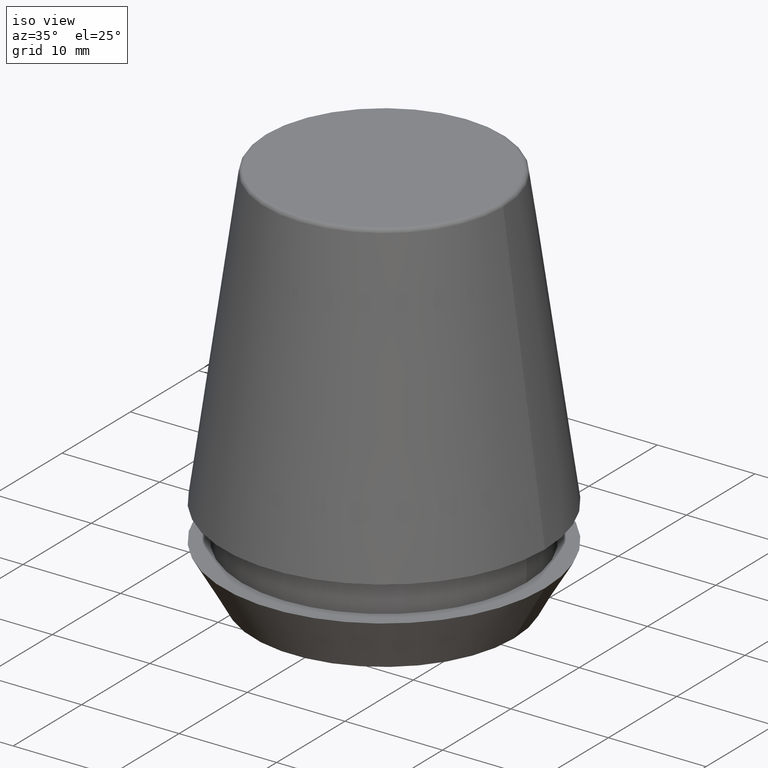
[diagram: clean part render]
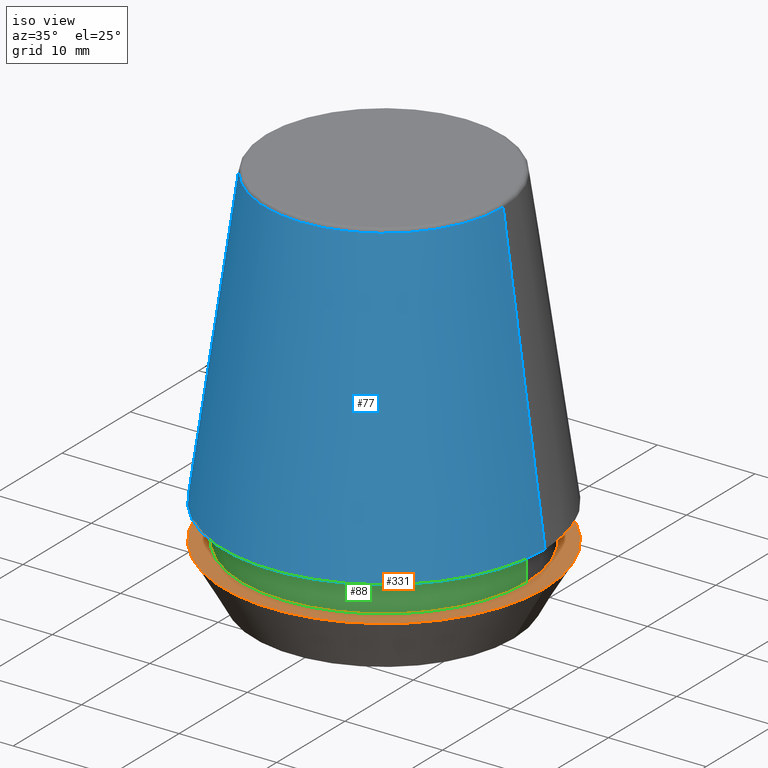
[diagram: same view with three faces highlighted in distinct colors, each labeled with its STEP entity id]
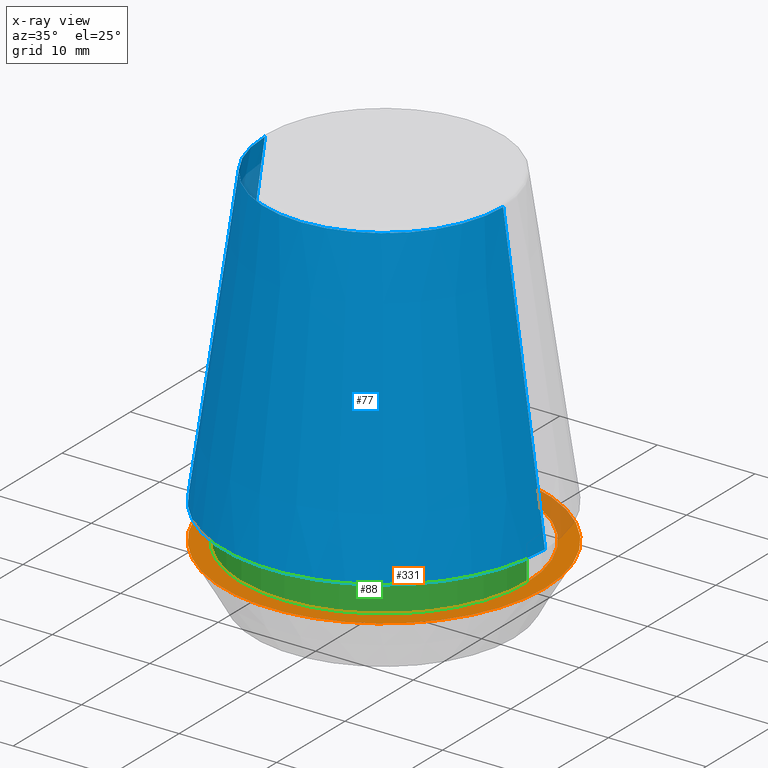
[diagram: x-ray of the same camera — body ghosted, the three highlighted faces saturated]
A machine part, iso view with three faces highlighted in distinct colors.
The next image is the same camera in x-ray (body ghosted, the three faces saturated) — at least one of them is partly hidden behind the body in this view.
Their STEP definitions:

[orange] entity #331 — the highlighted planar face has unit normal (0, 0, -1).
#25 = CARTESIAN_POINT ( 'NONE',  ( 0.0000000000000000000, 0.0000000000000000000, 5.500000000000005300 ) ) ;
#26 = AXIS2_PLACEMENT_3D ( 'NONE', #40, #351, #150 ) ;
#28 = VERTEX_POINT ( 'NONE', #361 ) ;
#38 = AXIS2_PLACEMENT_3D ( 'NONE', #234, #56, #113 ) ;
#40 = CARTESIAN_POINT ( 'NONE',  ( 0.0000000000000000000, 16.50000000000000000, 5.500000000000002700 ) ) ;
#55 = DIRECTION ( 'NONE',  ( -0.0000000000000000000, -0.0000000000000000000, 1.000000000000000000 ) ) ;
#56 = DIRECTION ( 'NONE',  ( -0.0000000000000000000, -0.0000000000000000000, 1.000000000000000000 ) ) ;
#78 = EDGE_CURVE ( 'NONE', #247, #28, #149, .T. ) ;
#84 = PLANE ( 'NONE',  #26 ) ;
#91 = AXIS2_PLACEMENT_3D ( 'NONE', #25, #231, #371 ) ;
#96 = CIRCLE ( 'NONE', #91, 16.50000000000000000 ) ;
#104 = EDGE_LOOP ( 'NONE', ( #281, #119 ) ) ;
#113 = DIRECTION ( 'NONE',  ( 1.000000000000000000, 0.0000000000000000000, 0.0000000000000000000 ) ) ;
#119 = ORIENTED_EDGE ( 'NONE', *, *, #168, .F. ) ;
#126 = FACE_OUTER_BOUND ( 'NONE', #156, .T. ) ;
#130 = CARTESIAN_POINT ( 'NONE',  ( 0.0000000000000000000, 0.0000000000000000000, 5.500000000000005300 ) ) ;
#138 = DIRECTION ( 'NONE',  ( -0.0000000000000000000, -0.0000000000000000000, 1.000000000000000000 ) ) ;
#149 = CIRCLE ( 'NONE', #183, 14.60000000000000000 ) ;
#150 = DIRECTION ( 'NONE',  ( -1.000000000000000000, 0.0000000000000000000, -0.0000000000000000000 ) ) ;
#156 = EDGE_LOOP ( 'NONE', ( #200, #326 ) ) ;
#168 = EDGE_CURVE ( 'NONE', #28, #247, #196, .T. ) ;
#180 = CIRCLE ( 'NONE', #195, 16.50000000000000000 ) ;
#183 = AXIS2_PLACEMENT_3D ( 'NONE', #202, #138, #347 ) ;
#195 = AXIS2_PLACEMENT_3D ( 'NONE', #130, #55, #271 ) ;
#196 = CIRCLE ( 'NONE', #38, 14.60000000000000000 ) ;
#200 = ORIENTED_EDGE ( 'NONE', *, *, #338, .T. ) ;
#202 = CARTESIAN_POINT ( 'NONE',  ( 0.0000000000000000000, 0.0000000000000000000, 5.500000000000005300 ) ) ;
#204 = CARTESIAN_POINT ( 'NONE',  ( 14.60000000000000000, 0.0000000000000000000, 5.500000000000005300 ) ) ;
#227 = FACE_BOUND ( 'NONE', #104, .T. ) ;
#231 = DIRECTION ( 'NONE',  ( -0.0000000000000000000, -0.0000000000000000000, 1.000000000000000000 ) ) ;
#234 = CARTESIAN_POINT ( 'NONE',  ( 0.0000000000000000000, 0.0000000000000000000, 5.500000000000005300 ) ) ;
#247 = VERTEX_POINT ( 'NONE', #204 ) ;
#271 = DIRECTION ( 'NONE',  ( 1.000000000000000000, 0.0000000000000000000, 0.0000000000000000000 ) ) ;
#277 = VERTEX_POINT ( 'NONE', #333 ) ;
#281 = ORIENTED_EDGE ( 'NONE', *, *, #78, .F. ) ;
#326 = ORIENTED_EDGE ( 'NONE', *, *, #332, .T. ) ;
#331 = ADVANCED_FACE ( 'NONE', ( #227, #126 ), #84, .F. ) ;
#332 = EDGE_CURVE ( 'NONE', #387, #277, #96, .T. ) ;
#333 = CARTESIAN_POINT ( 'NONE',  ( 16.50000000000000000, 0.0000000000000000000, 5.500000000000005300 ) ) ;
#338 = EDGE_CURVE ( 'NONE', #277, #387, #180, .T. ) ;
#347 = DIRECTION ( 'NONE',  ( 1.000000000000000000, 0.0000000000000000000, 0.0000000000000000000 ) ) ;
#351 = DIRECTION ( 'NONE',  ( 0.0000000000000000000, 0.0000000000000000000, -1.000000000000000000 ) ) ;
#361 = CARTESIAN_POINT ( 'NONE',  ( -14.60000000000000000, 1.787984326755135800E-015, 5.500000000000005300 ) ) ;
#371 = DIRECTION ( 'NONE',  ( 1.000000000000000000, 0.0000000000000000000, 0.0000000000000000000 ) ) ;
#383 = CARTESIAN_POINT ( 'NONE',  ( -16.50000000000000000, 2.020667218593133100E-015, 5.500000000000005300 ) ) ;
#387 = VERTEX_POINT ( 'NONE', #383 ) ;

[blue] entity #77 — the highlighted conical surface has half-angle 8 deg.
#31 = DIRECTION ( 'NONE',  ( -0.0000000000000000000, -0.0000000000000000000, 1.000000000000000000 ) ) ;
#39 = AXIS2_PLACEMENT_3D ( 'NONE', #179, #31, #127 ) ;
#50 = CARTESIAN_POINT ( 'NONE',  ( -16.50032537154048700, 0.0000000000000000000, 9.099999999999997900 ) ) ;
#77 = ADVANCED_FACE ( 'NONE', ( #252 ), #318, .T. ) ;
#127 = DIRECTION ( 'NONE',  ( 1.000000000000000000, 0.0000000000000000000, 0.0000000000000000000 ) ) ;
#139 = LINE ( 'NONE', #154, #203 ) ;
#140 = CARTESIAN_POINT ( 'NONE',  ( 0.0000000000000000000, 0.0000000000000000000, 39.65566924038402900 ) ) ;
#154 = CARTESIAN_POINT ( 'NONE',  ( 16.50032537154048700, 2.020707065114692300E-015, 9.099999999999997900 ) ) ;
#155 = EDGE_CURVE ( 'NONE', #373, #289, #266, .T. ) ;
#157 = DIRECTION ( 'NONE',  ( -0.1391731009600586900, 0.0000000000000000000, -0.9902680687415712500 ) ) ;
#166 = VERTEX_POINT ( 'NONE', #369 ) ;
#169 = AXIS2_PLACEMENT_3D ( 'NONE', #140, #348, #335 ) ;
#175 = DIRECTION ( 'NONE',  ( 0.0000000000000000000, 0.0000000000000000000, -1.000000000000000000 ) ) ;
#179 = CARTESIAN_POINT ( 'NONE',  ( 0.0000000000000000000, 0.0000000000000000000, 9.099999999999997900 ) ) ;
#203 = VECTOR ( 'NONE', #274, 1000.000000000000000 ) ;
#210 = ORIENTED_EDGE ( 'NONE', *, *, #370, .F. ) ;
#212 = LINE ( 'NONE', #50, #367 ) ;
#224 = AXIS2_PLACEMENT_3D ( 'NONE', #242, #175, #275 ) ;
#230 = CIRCLE ( 'NONE', #39, 16.50032537154048700 ) ;
#242 = CARTESIAN_POINT ( 'NONE',  ( 0.0000000000000000000, 0.0000000000000000000, 9.099999999999997900 ) ) ;
#252 = FACE_OUTER_BOUND ( 'NONE', #300, .T. ) ;
#254 = CARTESIAN_POINT ( 'NONE',  ( -12.20600611160694300, 0.0000000000000000000, 39.65566924038402900 ) ) ;
#266 = CIRCLE ( 'NONE', #169, 12.20600611160694300 ) ;
#274 = DIRECTION ( 'NONE',  ( 0.1391731009600586900, 1.704378926181473100E-017, -0.9902680687415712500 ) ) ;
#275 = DIRECTION ( 'NONE',  ( -1.000000000000000000, 0.0000000000000000000, 0.0000000000000000000 ) ) ;
#280 = EDGE_CURVE ( 'NONE', #373, #166, #212, .T. ) ;
#289 = VERTEX_POINT ( 'NONE', #315 ) ;
#300 = EDGE_LOOP ( 'NONE', ( #210, #307, #319, #323 ) ) ;
#307 = ORIENTED_EDGE ( 'NONE', *, *, #155, .F. ) ;
#309 = EDGE_CURVE ( 'NONE', #166, #320, #230, .T. ) ;
#315 = CARTESIAN_POINT ( 'NONE',  ( 12.20600611160694300, 1.757755848304969800E-015, 39.65566924038402900 ) ) ;
#318 = CONICAL_SURFACE ( 'NONE', #224, 16.50032537154048700, 0.1396263401595395900 ) ;
#319 = ORIENTED_EDGE ( 'NONE', *, *, #280, .T. ) ;
#320 = VERTEX_POINT ( 'NONE', #386 ) ;
#323 = ORIENTED_EDGE ( 'NONE', *, *, #309, .T. ) ;
#335 = DIRECTION ( 'NONE',  ( 1.000000000000000000, 0.0000000000000000000, 0.0000000000000000000 ) ) ;
#348 = DIRECTION ( 'NONE',  ( -0.0000000000000000000, -0.0000000000000000000, 1.000000000000000000 ) ) ;
#367 = VECTOR ( 'NONE', #157, 1000.000000000000000 ) ;
#369 = CARTESIAN_POINT ( 'NONE',  ( -16.50032537154048700, 0.0000000000000000000, 9.099999999999997900 ) ) ;
#370 = EDGE_CURVE ( 'NONE', #289, #320, #139, .T. ) ;
#373 = VERTEX_POINT ( 'NONE', #254 ) ;
#386 = CARTESIAN_POINT ( 'NONE',  ( 16.50032537154048700, 2.020707065114692300E-015, 9.099999999999997900 ) ) ;

[green] entity #88 — the highlighted cylindrical surface (partial cylindrical patch) has radius 14.6 mm, axis along (-0, -0, 1).
#9 = CARTESIAN_POINT ( 'NONE',  ( -14.60000000000000000, 1.787984326755135800E-015, 101.8074564848000400 ) ) ;
#28 = VERTEX_POINT ( 'NONE', #361 ) ;
#30 = CARTESIAN_POINT ( 'NONE',  ( 14.60000000000000000, 0.0000000000000000000, 101.8074564848000400 ) ) ;
#38 = AXIS2_PLACEMENT_3D ( 'NONE', #234, #56, #113 ) ;
#54 = EDGE_LOOP ( 'NONE', ( #72, #263, #305, #306 ) ) ;
#56 = DIRECTION ( 'NONE',  ( -0.0000000000000000000, -0.0000000000000000000, 1.000000000000000000 ) ) ;
#60 = VERTEX_POINT ( 'NONE', #83 ) ;
#63 = AXIS2_PLACEMENT_3D ( 'NONE', #94, #364, #106 ) ;
#64 = DIRECTION ( 'NONE',  ( -0.0000000000000000000, -0.0000000000000000000, 1.000000000000000000 ) ) ;
#67 = VECTOR ( 'NONE', #381, 1000.000000000000000 ) ;
#72 = ORIENTED_EDGE ( 'NONE', *, *, #221, .F. ) ;
#73 = CIRCLE ( 'NONE', #147, 14.60000000000000000 ) ;
#75 = EDGE_CURVE ( 'NONE', #247, #60, #217, .T. ) ;
#83 = CARTESIAN_POINT ( 'NONE',  ( 14.60000000000000000, 0.0000000000000000000, 9.099999999999997900 ) ) ;
#88 = ADVANCED_FACE ( 'NONE', ( #235 ), #187, .T. ) ;
#94 = CARTESIAN_POINT ( 'NONE',  ( 0.0000000000000000000, 0.0000000000000000000, 101.8074564848000400 ) ) ;
#106 = DIRECTION ( 'NONE',  ( 1.000000000000000000, 0.0000000000000000000, 0.0000000000000000000 ) ) ;
#113 = DIRECTION ( 'NONE',  ( 1.000000000000000000, 0.0000000000000000000, 0.0000000000000000000 ) ) ;
#116 = VECTOR ( 'NONE', #265, 1000.000000000000000 ) ;
#147 = AXIS2_PLACEMENT_3D ( 'NONE', #220, #64, #359 ) ;
#168 = EDGE_CURVE ( 'NONE', #28, #247, #196, .T. ) ;
#185 = CARTESIAN_POINT ( 'NONE',  ( -14.60000000000000000, 1.787984326755135800E-015, 9.099999999999997900 ) ) ;
#187 = CYLINDRICAL_SURFACE ( 'NONE', #63, 14.60000000000000000 ) ;
#196 = CIRCLE ( 'NONE', #38, 14.60000000000000000 ) ;
#204 = CARTESIAN_POINT ( 'NONE',  ( 14.60000000000000000, 0.0000000000000000000, 5.500000000000005300 ) ) ;
#217 = LINE ( 'NONE', #30, #67 ) ;
#220 = CARTESIAN_POINT ( 'NONE',  ( 0.0000000000000000000, 0.0000000000000000000, 9.099999999999997900 ) ) ;
#221 = EDGE_CURVE ( 'NONE', #28, #272, #269, .T. ) ;
#234 = CARTESIAN_POINT ( 'NONE',  ( 0.0000000000000000000, 0.0000000000000000000, 5.500000000000005300 ) ) ;
#235 = FACE_OUTER_BOUND ( 'NONE', #54, .T. ) ;
#247 = VERTEX_POINT ( 'NONE', #204 ) ;
#263 = ORIENTED_EDGE ( 'NONE', *, *, #168, .T. ) ;
#265 = DIRECTION ( 'NONE',  ( -0.0000000000000000000, -0.0000000000000000000, 1.000000000000000000 ) ) ;
#269 = LINE ( 'NONE', #9, #116 ) ;
#272 = VERTEX_POINT ( 'NONE', #185 ) ;
#305 = ORIENTED_EDGE ( 'NONE', *, *, #75, .T. ) ;
#306 = ORIENTED_EDGE ( 'NONE', *, *, #372, .F. ) ;
#359 = DIRECTION ( 'NONE',  ( 1.000000000000000000, 0.0000000000000000000, 0.0000000000000000000 ) ) ;
#361 = CARTESIAN_POINT ( 'NONE',  ( -14.60000000000000000, 1.787984326755135800E-015, 5.500000000000005300 ) ) ;
#364 = DIRECTION ( 'NONE',  ( -0.0000000000000000000, -0.0000000000000000000, 1.000000000000000000 ) ) ;
#372 = EDGE_CURVE ( 'NONE', #272, #60, #73, .T. ) ;
#381 = DIRECTION ( 'NONE',  ( -0.0000000000000000000, -0.0000000000000000000, 1.000000000000000000 ) ) ;